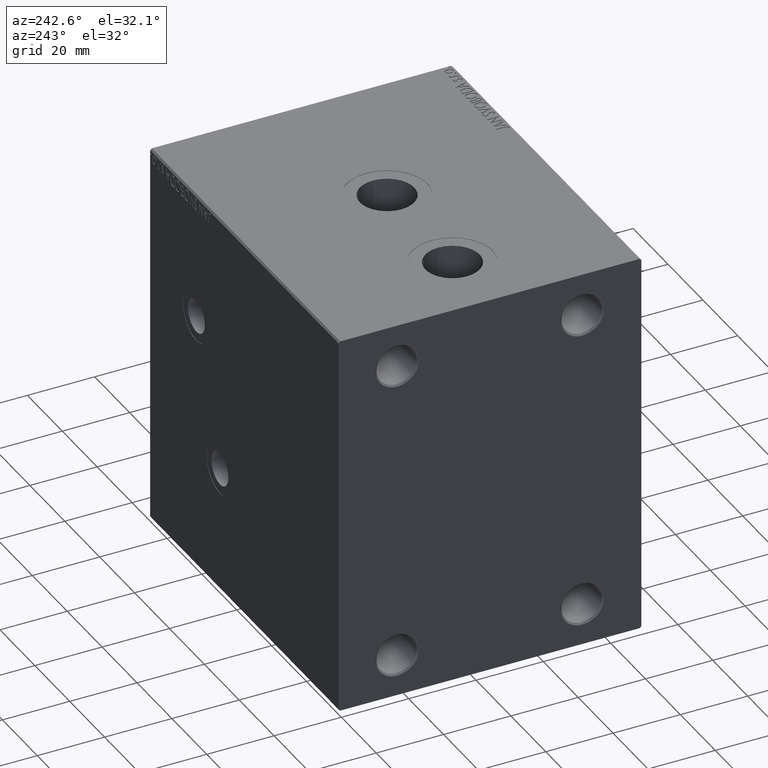
[diagram: clean part render]
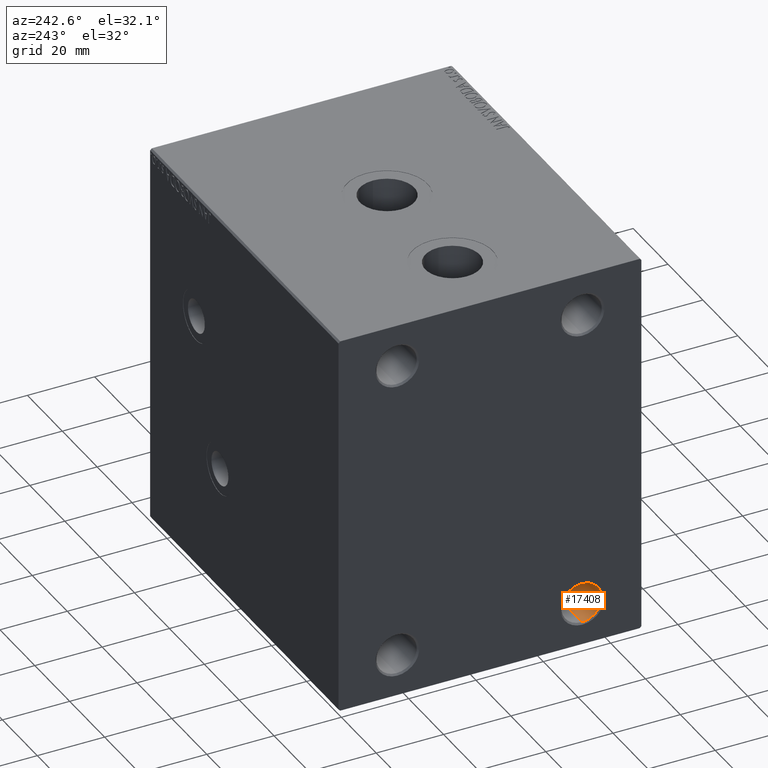
[diagram: same view with one face highlighted and labeled with its STEP entity id]
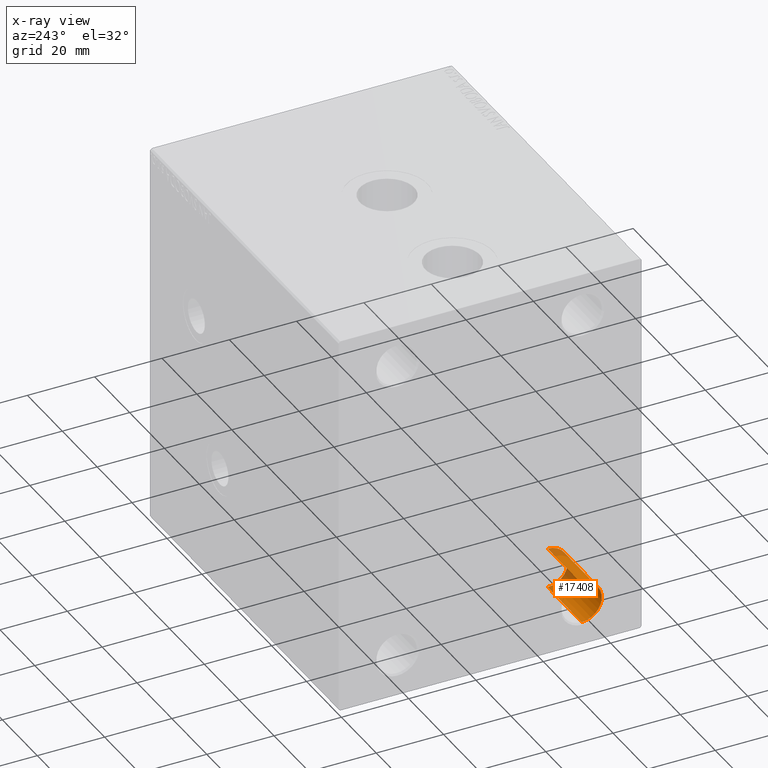
[diagram: x-ray of the same camera — body ghosted, the highlighted face saturated]
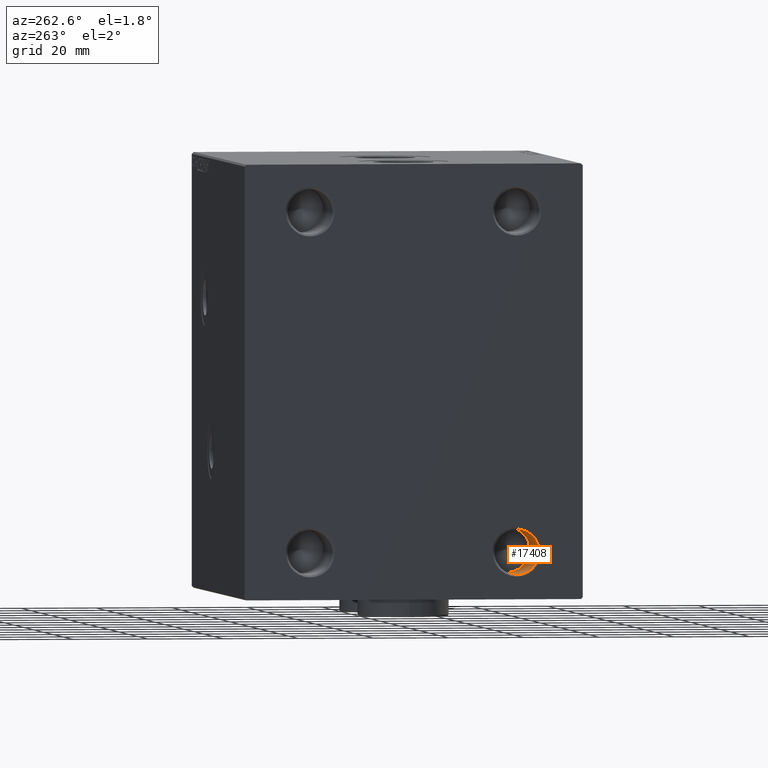
[diagram: same view with one face highlighted and labeled with its STEP entity id]
A machine part, auxiliary view. The second image highlights one B-rep face of the part: STEP entity #17408.
The next image is the same camera in x-ray: the body ghosted, the highlighted face saturated — about 21% of this face is hidden behind the body in this view.
A second angle (auxiliary view) of the same face is appended — the face is thin or edge-on in the first view.
In plain terms, the highlighted cylindrical surface (edge-blend (fillet) strip) has radius 6 mm, axis along (-1, -0, 0).
Its self-contained STEP definition (entity closure, byte-faithful):
#28 = DIRECTION ( 'NONE',  ( 1.000000000000000000, -0.000000000000000000, -0.000000000000000000 ) ) ;
#1405 = CIRCLE ( 'NONE', #13381, 5.999999999999998224 ) ;
#1647 = DIRECTION ( 'NONE',  ( 1.000000000000000000, -0.000000000000000000, -0.000000000000000000 ) ) ;
#1890 = VERTEX_POINT ( 'NONE', #11387 ) ;
#4084 = CARTESIAN_POINT ( 'NONE',  ( 88.00000000000000000, -27.50000000000000000, 44.99999999999999289 ) ) ;
#4225 = FACE_OUTER_BOUND ( 'NONE', #32302, .T. ) ;
#5155 = LINE ( 'NONE', #26657, #41569 ) ;
#7073 = ORIENTED_EDGE ( 'NONE', *, *, #23669, .F. ) ;
#9584 = CARTESIAN_POINT ( 'NONE',  ( 107.4999999999999716, -27.50000000000000000, 38.99999999999999289 ) ) ;
#9602 = EDGE_CURVE ( 'NONE', #22623, #15632, #44647, .T. ) ;
#10364 = AXIS2_PLACEMENT_3D ( 'NONE', #17060, #45589, #13333 ) ;
#10690 = AXIS2_PLACEMENT_3D ( 'NONE', #46112, #28, #35814 ) ;
#11387 = CARTESIAN_POINT ( 'NONE',  ( 88.00000000000000000, -27.50000000000000000, 38.99999999999999289 ) ) ;
#11708 = VECTOR ( 'NONE', #23339, 1000.000000000000000 ) ;
#13333 = DIRECTION ( 'NONE',  ( 0.000000000000000000, 0.000000000000000000, -1.000000000000000000 ) ) ;
#13381 = AXIS2_PLACEMENT_3D ( 'NONE', #4084, #33312, #18340 ) ;
#15632 = VERTEX_POINT ( 'NONE', #19786 ) ;
#16138 = ORIENTED_EDGE ( 'NONE', *, *, #24138, .T. ) ;
#17060 = CARTESIAN_POINT ( 'NONE',  ( 107.4999999999999716, -27.50000000000000000, 44.99999999999999289 ) ) ;
#17408 = ADVANCED_FACE ( 'NONE', ( #4225 ), #24581, .F. ) ;
#17789 = CARTESIAN_POINT ( 'NONE',  ( 88.00000000000000000, -27.50000000000000000, 50.99999999999999289 ) ) ;
#18340 = DIRECTION ( 'NONE',  ( 0.000000000000000000, 0.000000000000000000, 1.000000000000000000 ) ) ;
#18433 = EDGE_CURVE ( 'NONE', #1890, #30754, #5155, .T. ) ;
#19786 = CARTESIAN_POINT ( 'NONE',  ( 107.4999999999999716, -27.50000000000000000, 50.99999999999999289 ) ) ;
#22623 = VERTEX_POINT ( 'NONE', #17789 ) ;
#23339 = DIRECTION ( 'NONE',  ( 1.000000000000000000, -0.000000000000000000, -0.000000000000000000 ) ) ;
#23669 = EDGE_CURVE ( 'NONE', #30754, #15632, #45490, .T. ) ;
#24138 = EDGE_CURVE ( 'NONE', #1890, #22623, #1405, .T. ) ;
#24581 = CYLINDRICAL_SURFACE ( 'NONE', #10690, 5.999999999999998224 ) ;
#26657 = CARTESIAN_POINT ( 'NONE',  ( 108.0000000000000000, -27.50000000000000000, 38.99999999999999289 ) ) ;
#30754 = VERTEX_POINT ( 'NONE', #9584 ) ;
#32302 = EDGE_LOOP ( 'NONE', ( #38356, #16138, #41322, #7073 ) ) ;
#33312 = DIRECTION ( 'NONE',  ( -1.000000000000000000, 0.000000000000000000, 0.000000000000000000 ) ) ;
#35814 = DIRECTION ( 'NONE',  ( 0.000000000000000000, 0.000000000000000000, 1.000000000000000000 ) ) ;
#38356 = ORIENTED_EDGE ( 'NONE', *, *, #18433, .F. ) ;
#41322 = ORIENTED_EDGE ( 'NONE', *, *, #9602, .T. ) ;
#41370 = CARTESIAN_POINT ( 'NONE',  ( 108.0000000000000000, -27.50000000000000000, 50.99999999999999289 ) ) ;
#41569 = VECTOR ( 'NONE', #1647, 1000.000000000000000 ) ;
#44647 = LINE ( 'NONE', #41370, #11708 ) ;
#45490 = CIRCLE ( 'NONE', #10364, 5.999999999999998224 ) ;
#45589 = DIRECTION ( 'NONE',  ( -1.000000000000000000, 0.000000000000000000, 0.000000000000000000 ) ) ;
#46112 = CARTESIAN_POINT ( 'NONE',  ( 108.0000000000000000, -27.50000000000000000, 44.99999999999999289 ) ) ;